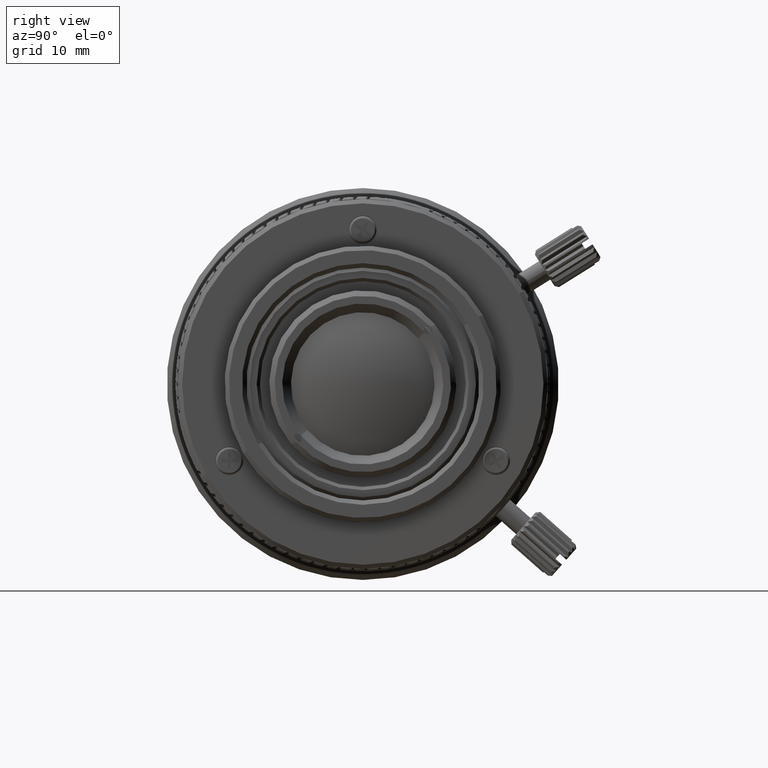
[diagram: clean part render]
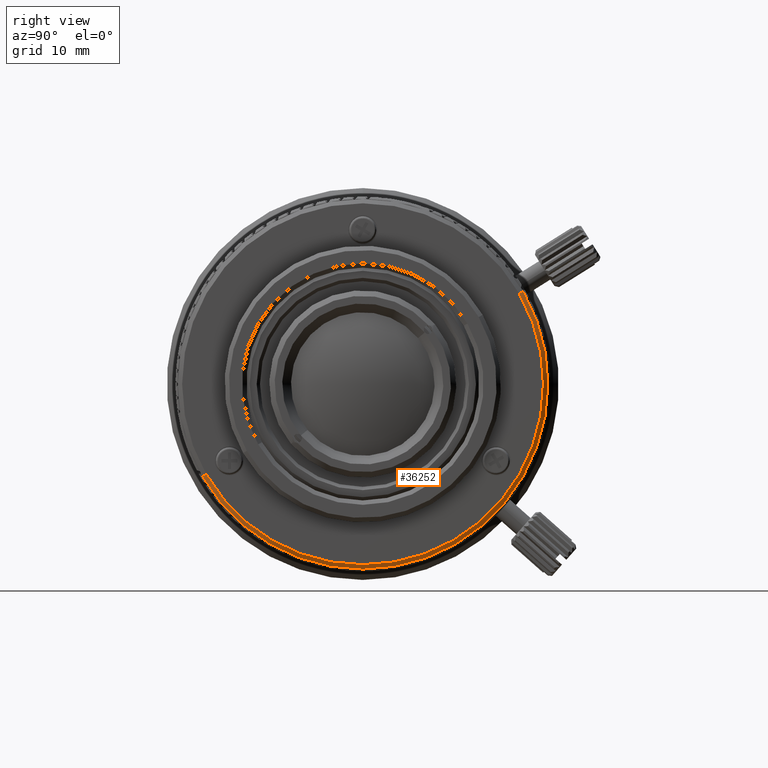
[diagram: same view with one face highlighted and labeled with its STEP entity id]
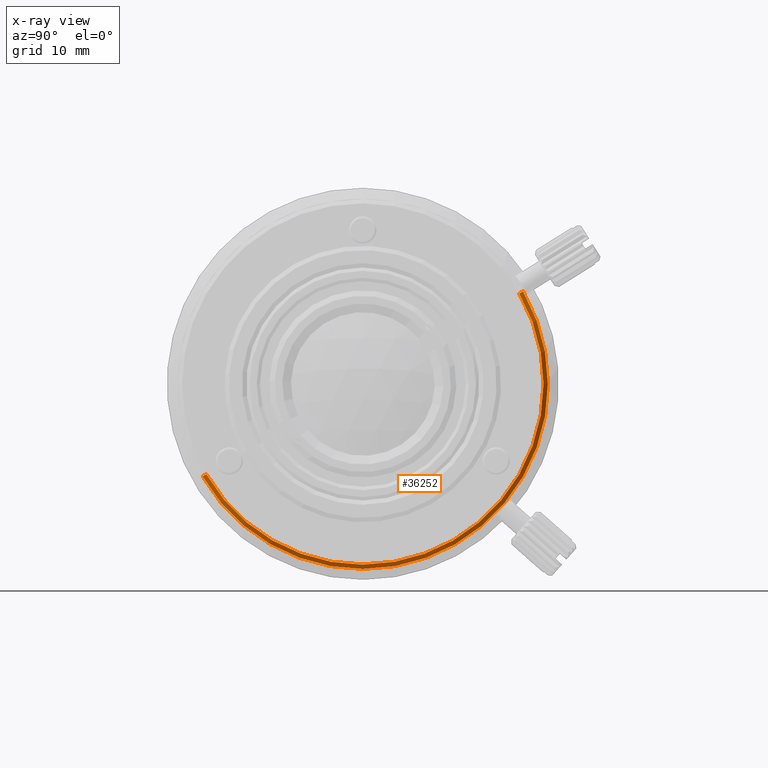
[diagram: x-ray of the same camera — body ghosted, the highlighted face saturated]
A machine part, right view. The second image highlights one B-rep face of the part: STEP entity #36252.
The next image is the same camera in x-ray: the body ghosted, the highlighted face saturated — about 0% of this face is hidden behind the body in this view.
In plain terms, the highlighted conical surface has half-angle 45 deg.
Its self-contained STEP definition (entity closure, byte-faithful):
#999 = EDGE_CURVE ( 'NONE', #50542, #56503, #75376, .T. ) ;
#1215 = CARTESIAN_POINT ( 'NONE',  ( 21.24000000000000554, 7.057796218657209954E-15, 3.635399248874459575E-15 ) ) ;
#4829 = CARTESIAN_POINT ( 'NONE',  ( 20.84000000000001052, 7.057796218657209954E-15, 3.635399248874459575E-15 ) ) ;
#8244 = DIRECTION ( 'NONE',  ( -0.7071067811865467956, -0.6123724356957936932, -0.3535533905932770060 ) ) ;
#9035 = VECTOR ( 'NONE', #31333, 1000.000000000000000 ) ;
#9794 = EDGE_CURVE ( 'NONE', #75112, #20537, #38397, .T. ) ;
#13379 = DIRECTION ( 'NONE',  ( 0.000000000000000000, -0.8660254037844362651, -0.5000000000000039968 ) ) ;
#16599 = DIRECTION ( 'NONE',  ( 1.000000000000000000, 0.000000000000000000, -0.000000000000000000 ) ) ;
#18509 = CARTESIAN_POINT ( 'NONE',  ( 20.84000000000001052, 7.057796218657209954E-15, 3.635399248874459575E-15 ) ) ;
#20537 = VERTEX_POINT ( 'NONE', #44431 ) ;
#25832 = CARTESIAN_POINT ( 'NONE',  ( 20.84000000000001052, 14.72243186433543549, 8.500000000000079936 ) ) ;
#26992 = ORIENTED_EDGE ( 'NONE', *, *, #9794, .T. ) ;
#28117 = EDGE_CURVE ( 'NONE', #50542, #20537, #36432, .T. ) ;
#29142 = DIRECTION ( 'NONE',  ( 0.000000000000000000, -0.8660254037844363761, -0.5000000000000039968 ) ) ;
#29363 = CARTESIAN_POINT ( 'NONE',  ( 20.84000000000001052, -14.72243186433542306, -8.500000000000071054 ) ) ;
#30672 = DIRECTION ( 'NONE',  ( 0.000000000000000000, -0.8660254037844363761, -0.5000000000000039968 ) ) ;
#31333 = DIRECTION ( 'NONE',  ( -0.7071067811865467956, 0.6123724356957934711, 0.3535533905932770060 ) ) ;
#34060 = CARTESIAN_POINT ( 'NONE',  ( 21.24000000000000554, -14.37602170282165481, -8.300000000000073541 ) ) ;
#36252 = ADVANCED_FACE ( 'NONE', ( #48299 ), #77612, .T. ) ;
#36432 = LINE ( 'NONE', #25832, #9035 ) ;
#37385 = ORIENTED_EDGE ( 'NONE', *, *, #28117, .F. ) ;
#38018 = CARTESIAN_POINT ( 'NONE',  ( 20.84000000000001052, -14.72243186433542306, -8.500000000000071054 ) ) ;
#38397 = CIRCLE ( 'NONE', #42136, 17.00000000000001421 ) ;
#38948 = ORIENTED_EDGE ( 'NONE', *, *, #999, .T. ) ;
#42136 = AXIS2_PLACEMENT_3D ( 'NONE', #4829, #16599, #29142 ) ;
#42412 = DIRECTION ( 'NONE',  ( -1.000000000000000000, -0.000000000000000000, 0.000000000000000000 ) ) ;
#43794 = AXIS2_PLACEMENT_3D ( 'NONE', #18509, #42412, #30672 ) ;
#44431 = CARTESIAN_POINT ( 'NONE',  ( 20.84000000000001052, 14.72243186433543549, 8.500000000000079936 ) ) ;
#48252 = VECTOR ( 'NONE', #8244, 999.9999999999998863 ) ;
#48299 = FACE_OUTER_BOUND ( 'NONE', #57801, .T. ) ;
#50542 = VERTEX_POINT ( 'NONE', #75175 ) ;
#50939 = LINE ( 'NONE', #38018, #48252 ) ;
#54979 = EDGE_CURVE ( 'NONE', #56503, #75112, #50939, .T. ) ;
#55303 = DIRECTION ( 'NONE',  ( -1.000000000000000000, -0.000000000000000000, 0.000000000000000000 ) ) ;
#56503 = VERTEX_POINT ( 'NONE', #34060 ) ;
#57801 = EDGE_LOOP ( 'NONE', ( #37385, #38948, #61778, #26992 ) ) ;
#61622 = AXIS2_PLACEMENT_3D ( 'NONE', #1215, #55303, #13379 ) ;
#61778 = ORIENTED_EDGE ( 'NONE', *, *, #54979, .T. ) ;
#75112 = VERTEX_POINT ( 'NONE', #29363 ) ;
#75175 = CARTESIAN_POINT ( 'NONE',  ( 21.24000000000000554, 14.37602170282166725, 8.300000000000082423 ) ) ;
#75376 = CIRCLE ( 'NONE', #61622, 16.60000000000002274 ) ;
#77612 = CONICAL_SURFACE ( 'NONE', #43794, 17.00000000000001421, 0.7853981633974492782 ) ;